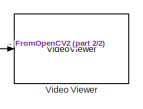
[diagram: root canvas - part 1/2, top right region]
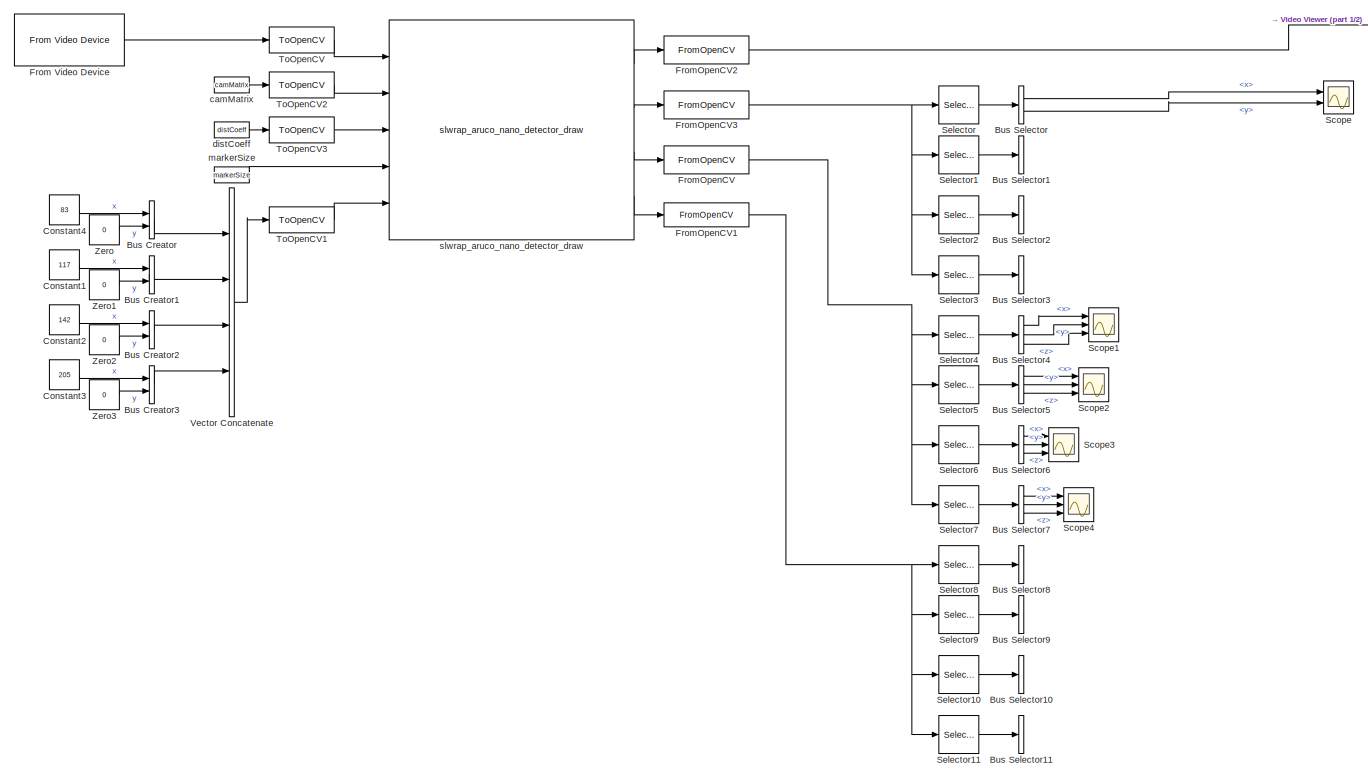
[diagram: root canvas - part 2/2, most of the canvas]
MODEL slx_cd7bcc8adf5c
KIND model
CONFIG AbsTol = auto
CONFIG EnableMultiTasking = off
CONFIG FixedStep = auto
CONFIG MaxStep = auto
CONFIG MinStep = auto
CONFIG RelTol = 1e-3
CONFIG SampleTimeConstraint = Unconstrained
CONFIG SolverName = FixedStepDiscrete
CONFIG StartTime = 0.0
CONFIG StopTime = 60
BLOCK [BusCreator] Bus Creator
  DisplayOption = bar
  InheritFromInputs = on
  Inputs = x,y
  NonVirtualBus = on
  OutDataTypeStr = Bus: CV_POINT2I_BUS
  Ports = [2, 1]
BLOCK [BusCreator] Bus Creator1
  DisplayOption = bar
  InheritFromInputs = on
  Inputs = x,y
  NonVirtualBus = on
  OutDataTypeStr = Bus: CV_POINT2I_BUS
  Ports = [2, 1]
BLOCK [BusCreator] Bus Creator2
  DisplayOption = bar
  InheritFromInputs = on
  Inputs = x,y
  NonVirtualBus = on
  OutDataTypeStr = Bus: CV_POINT2I_BUS
  Ports = [2, 1]
BLOCK [BusCreator] Bus Creator3
  DisplayOption = bar
  InheritFromInputs = on
  Inputs = x,y
  NonVirtualBus = on
  OutDataTypeStr = Bus: CV_POINT2I_BUS
  Ports = [2, 1]
BLOCK [BusSelector] Bus Selector
  OutputSignals = x,y
  Ports = [1, 2]
BLOCK [BusSelector] Bus Selector1
  OutputSignals = x,y
  Ports = [1, 2]
BLOCK [BusSelector] Bus Selector10
  OutputSignals = x,y,z
  Ports = [1, 3]
BLOCK [BusSelector] Bus Selector11
  OutputSignals = x,y,z
  Ports = [1, 3]
BLOCK [BusSelector] Bus Selector2
  OutputSignals = x,y
  Ports = [1, 2]
BLOCK [BusSelector] Bus Selector3
  OutputSignals = x,y
  Ports = [1, 2]
BLOCK [BusSelector] Bus Selector4
  OutputSignals = x,y,z
  Ports = [1, 3]
BLOCK [BusSelector] Bus Selector5
  OutputSignals = x,y,z
  Ports = [1, 3]
BLOCK [BusSelector] Bus Selector6
  OutputSignals = x,y,z
  Ports = [1, 3]
BLOCK [BusSelector] Bus Selector7
  OutputSignals = x,y,z
  Ports = [1, 3]
BLOCK [BusSelector] Bus Selector8
  OutputSignals = x,y,z
  Ports = [1, 3]
BLOCK [BusSelector] Bus Selector9
  OutputSignals = x,y,z
  Ports = [1, 3]
BLOCK [Constant] Constant1
  OutDataTypeStr = int32
  Value = 117
BLOCK [Constant] Constant2
  OutDataTypeStr = int32
  Value = 142
BLOCK [Constant] Constant3
  OutDataTypeStr = int32
  Value = 205
BLOCK [Constant] Constant4
  OutDataTypeStr = int32
  Value = 83
BLOCK [Reference] From Video Device  REF=imaqlib/From Video Device
  Ports = [0, 1]
  SourceBlock = imaqlib/From Video Device
  SourceProductBaseCode = IA
  SourceType = From Video Device
  UserDataPersistent = on
BLOCK [Reference] FromOpenCV  REF=opencvConverterBlockset/FromOpenCV
  Ports = [1, 1]
  SourceBlock = opencvConverterBlockset/FromOpenCV
  SourceProductBaseCode = SM_OPENCV
  SourceType = FromOpenCV Converter Block
BLOCK [Reference] FromOpenCV1  REF=opencvConverterBlockset/FromOpenCV
  Ports = [1, 1]
  SourceBlock = opencvConverterBlockset/FromOpenCV
  SourceProductBaseCode = SM_OPENCV
  SourceType = FromOpenCV Converter Block
BLOCK [Reference] FromOpenCV2  REF=opencvConverterBlockset/FromOpenCV
  Ports = [1, 1]
  SourceBlock = opencvConverterBlockset/FromOpenCV
  SourceProductBaseCode = SM_OPENCV
  SourceType = FromOpenCV Converter Block
BLOCK [Reference] FromOpenCV3  REF=opencvConverterBlockset/FromOpenCV
  Ports = [1, 1]
  SourceBlock = opencvConverterBlockset/FromOpenCV
  SourceProductBaseCode = SM_OPENCV
  SourceType = FromOpenCV Converter Block
BLOCK [Scope] Scope
  Floating = off
  NumInputPorts = 2
  Ports = [2]
  ScopeSpecificationString = Simulink.scopes.TimeScopeBlockCfg('CurrentConfiguration', extmgr.ConfigurationSet(extmgr.Configuration('Core','General UI',true),extmgr.Configuration('Core','Source UI',true),extmgr.Configuration('Sources','WiredSimulink',true),extmgr.Configuration('Visuals','Time Domain',true,'SerializedDisplays',{struct('MinYLimReal','73.00000','MaxYLimReal','93.00000','YLabelReal','','MinYLimMag','73.00000','Ma...<+1945ch>
BLOCK [Scope] Scope1
  Floating = off
  NumInputPorts = 3
  Ports = [3]
  ScopeSpecificationString = Simulink.scopes.TimeScopeBlockCfg('CurrentConfiguration', extmgr.ConfigurationSet(extmgr.Configuration('Core','General UI',true),extmgr.Configuration('Core','Source UI',true),extmgr.Configuration('Sources','WiredSimulink',true,'DataLoggingVariableName','ScopeData1'),extmgr.Configuration('Visuals','Time Domain',true,'SerializedDisplays',{struct('MinYLimReal','-1.52713','MaxYLimReal','3.94422','YLab...<+1455ch>
BLOCK [Scope] Scope2
  Floating = off
  NumInputPorts = 3
  Ports = [3]
  ScopeSpecificationString = Simulink.scopes.TimeScopeBlockCfg('CurrentConfiguration', extmgr.ConfigurationSet(extmgr.Configuration('Core','General UI',true),extmgr.Configuration('Core','Source UI',true),extmgr.Configuration('Sources','WiredSimulink',true,'DataLoggingVariableName','ScopeData2'),extmgr.Configuration('Visuals','Time Domain',true,'SerializedDisplays',{struct('MinYLimReal','-1.00000','MaxYLimReal','1.00000','YLab...<+1437ch>
BLOCK [Scope] Scope3
  Floating = off
  NumInputPorts = 3
  Ports = [3]
  ScopeSpecificationString = Simulink.scopes.TimeScopeBlockCfg('CurrentConfiguration', extmgr.ConfigurationSet(extmgr.Configuration('Core','General UI',true),extmgr.Configuration('Core','Source UI',true),extmgr.Configuration('Sources','WiredSimulink',true,'DataLoggingVariableName','ScopeData3'),extmgr.Configuration('Visuals','Time Domain',true,'SerializedDisplays',{struct('MinYLimReal','3.32518','MaxYLimReal','3.37999','YLabe...<+1448ch>
BLOCK [Scope] Scope4
  Floating = off
  NumInputPorts = 3
  Ports = [3]
  ScopeSpecificationString = Simulink.scopes.TimeScopeBlockCfg('CurrentConfiguration', extmgr.ConfigurationSet(extmgr.Configuration('Core','General UI',true),extmgr.Configuration('Core','Source UI',true),extmgr.Configuration('Sources','WiredSimulink',true,'DataLoggingVariableName','ScopeData4'),extmgr.Configuration('Visuals','Time Domain',true,'SerializedDisplays',{struct('MinYLimReal','-1.00000','MaxYLimReal','1.00000','YLab...<+1436ch>
BLOCK [Selector] Selector
  IndexOptions = Index vector (dialog)
  Indices = [1]
  InputPortWidth = 4
  OutputSizes = 1
  Ports = [1, 1]
BLOCK [Selector] Selector1
  IndexOptions = Index vector (dialog)
  Indices = [2]
  InputPortWidth = 4
  OutputSizes = 1
  Ports = [1, 1]
BLOCK [Selector] Selector10
  IndexOptions = Index vector (dialog)
  Indices = [3]
  InputPortWidth = 4
  OutputSizes = 1
  Ports = [1, 1]
BLOCK [Selector] Selector11
  IndexOptions = Index vector (dialog)
  Indices = [4]
  InputPortWidth = 4
  OutputSizes = 1
  Ports = [1, 1]
BLOCK [Selector] Selector2
  IndexOptions = Index vector (dialog)
  Indices = [3]
  InputPortWidth = 4
  OutputSizes = 1
  Ports = [1, 1]
BLOCK [Selector] Selector3
  IndexOptions = Index vector (dialog)
  Indices = [4]
  InputPortWidth = 4
  OutputSizes = 1
  Ports = [1, 1]
BLOCK [Selector] Selector4
  IndexOptions = Index vector (dialog)
  Indices = [1]
  InputPortWidth = 4
  OutputSizes = 1
  Ports = [1, 1]
BLOCK [Selector] Selector5
  IndexOptions = Index vector (dialog)
  Indices = [2]
  InputPortWidth = 4
  OutputSizes = 1
  Ports = [1, 1]
BLOCK [Selector] Selector6
  IndexOptions = Index vector (dialog)
  Indices = [3]
  InputPortWidth = 4
  OutputSizes = 1
  Ports = [1, 1]
BLOCK [Selector] Selector7
  IndexOptions = Index vector (dialog)
  Indices = [4]
  InputPortWidth = 4
  OutputSizes = 1
  Ports = [1, 1]
BLOCK [Selector] Selector8
  IndexOptions = Index vector (dialog)
  Indices = [1]
  InputPortWidth = 4
  OutputSizes = 1
  Ports = [1, 1]
BLOCK [Selector] Selector9
  IndexOptions = Index vector (dialog)
  Indices = [2]
  InputPortWidth = 4
  OutputSizes = 1
  Ports = [1, 1]
BLOCK [Reference] ToOpenCV  REF=opencvConverterBlockset/ToOpenCV
  Ports = [1, 1]
  SourceBlock = opencvConverterBlockset/ToOpenCV
  SourceProductBaseCode = SM_OPENCV
  SourceType = ToOpenCV Converter Block
BLOCK [Reference] ToOpenCV1  REF=opencvConverterBlockset/ToOpenCV
  Ports = [1, 1]
  SourceBlock = opencvConverterBlockset/ToOpenCV
  SourceProductBaseCode = SM_OPENCV
  SourceType = ToOpenCV Converter Block
BLOCK [Reference] ToOpenCV2  REF=opencvConverterBlockset/ToOpenCV
  Ports = [1, 1]
  SourceBlock = opencvConverterBlockset/ToOpenCV
  SourceProductBaseCode = SM_OPENCV
  SourceType = ToOpenCV Converter Block
BLOCK [Reference] ToOpenCV3  REF=opencvConverterBlockset/ToOpenCV
  Ports = [1, 1]
  SourceBlock = opencvConverterBlockset/ToOpenCV
  SourceProductBaseCode = SM_OPENCV
  SourceType = ToOpenCV Converter Block
BLOCK [Concatenate] Vector Concatenate
  NumInputs = 4
  Ports = [4, 1]
BLOCK [VideoViewer] Video Viewer
  FigPos = [1 814 1536 716]
  Ports = [1]
  ScopeSpecificationString = vipscopes.VideoViewerScopeCfg('CurrentConfiguration', extmgr.ConfigurationSet(extmgr.Configuration('Core','General UI',true),extmgr.Configuration('Core','Source UI',true),extmgr.Configuration('Sources','WiredSimulink',true,'LockSynchronous',true),extmgr.Configuration('Visuals','Video',true),extmgr.Configuration('Tools','Image Navigation Tools',true,'Magnification',0.842592592592593),extmgr.Configu...<+130ch>
  colormapValue = gray(256)
BLOCK [Constant] Zero
  OutDataTypeStr = int32
  Value = 0
BLOCK [Constant] Zero1
  OutDataTypeStr = int32
  Value = 0
BLOCK [Constant] Zero2
  OutDataTypeStr = int32
  Value = 0
BLOCK [Constant] Zero3
  OutDataTypeStr = int32
  Value = 0
BLOCK [Constant] camMatrix
  NameLocation = left
  Value = camMatrix
BLOCK [Constant] distCoeff
  NameLocation = left
  Value = distCoeff
  VectorParams1D = off
BLOCK [Constant] markerSize
  NameLocation = left
  Value = markerSize
BLOCK [Reference] slwrap_aruco_nano_detector_draw  REF=aruco_nano_detector_Lib/slwrap_aruco_nano_detector_draw
  Ports = [5, 4]
  SourceBlock = aruco_nano_detector_Lib/slwrap_aruco_nano_detector_draw
  SourceType = CCaller
LINE Bus Creator1:1 -> Vector Concatenate:2
LINE Bus Creator2:1 -> Vector Concatenate:3
LINE Bus Creator3:1 -> Vector Concatenate:4
LINE Bus Creator:1 -> Vector Concatenate:1
LINE Bus Selector4:1 -> Scope1:1
LINE Bus Selector4:2 -> Scope1:2
LINE Bus Selector4:3 -> Scope1:3
LINE Bus Selector5:1 -> Scope2:1
LINE Bus Selector5:2 -> Scope2:2
LINE Bus Selector5:3 -> Scope2:3
LINE Bus Selector6:1 -> Scope3:1
LINE Bus Selector6:2 -> Scope3:2
LINE Bus Selector6:3 -> Scope3:3
LINE Bus Selector7:1 -> Scope4:1
LINE Bus Selector7:2 -> Scope4:2
LINE Bus Selector7:3 -> Scope4:3
LINE Bus Selector:1 -> Scope:1
LINE Bus Selector:2 -> Scope:2
LINE Constant1:1 -> Bus Creator1:1
LINE Constant2:1 -> Bus Creator2:1
LINE Constant3:1 -> Bus Creator3:1
LINE Constant4:1 -> Bus Creator:1
LINE From Video Device:1 -> ToOpenCV:1
NET FromOpenCV1:1 -> Selector10:1, Selector11:1, Selector8:1, Selector9:1
LINE FromOpenCV2:1 -> Video Viewer:1
NET FromOpenCV3:1 -> Selector1:1, Selector2:1, Selector3:1, Selector:1
NET FromOpenCV:1 -> Selector4:1, Selector5:1, Selector6:1, Selector7:1
LINE Selector10:1 -> Bus Selector10:1
LINE Selector11:1 -> Bus Selector11:1
LINE Selector1:1 -> Bus Selector1:1
LINE Selector2:1 -> Bus Selector2:1
LINE Selector3:1 -> Bus Selector3:1
LINE Selector4:1 -> Bus Selector4:1
LINE Selector5:1 -> Bus Selector5:1
LINE Selector6:1 -> Bus Selector6:1
LINE Selector7:1 -> Bus Selector7:1
LINE Selector8:1 -> Bus Selector8:1
LINE Selector9:1 -> Bus Selector9:1
LINE Selector:1 -> Bus Selector:1
LINE ToOpenCV1:1 -> slwrap_aruco_nano_detector_draw:5
LINE ToOpenCV2:1 -> slwrap_aruco_nano_detector_draw:2
LINE ToOpenCV3:1 -> slwrap_aruco_nano_detector_draw:3
LINE ToOpenCV:1 -> slwrap_aruco_nano_detector_draw:1
LINE Vector Concatenate:1 -> ToOpenCV1:1
LINE Zero1:1 -> Bus Creator1:2
LINE Zero2:1 -> Bus Creator2:2
LINE Zero3:1 -> Bus Creator3:2
LINE Zero:1 -> Bus Creator:2
LINE camMatrix:1 -> ToOpenCV2:1
LINE distCoeff:1 -> ToOpenCV3:1
LINE markerSize:1 -> slwrap_aruco_nano_detector_draw:4
LINE slwrap_aruco_nano_detector_draw:1 -> FromOpenCV2:1
LINE slwrap_aruco_nano_detector_draw:2 -> FromOpenCV3:1
LINE slwrap_aruco_nano_detector_draw:3 -> FromOpenCV:1
LINE slwrap_aruco_nano_detector_draw:4 -> FromOpenCV1:1
note: NET lines group one-source signal fan-out (src -> all destinations, sorted); 1:1 wires keep LINE
